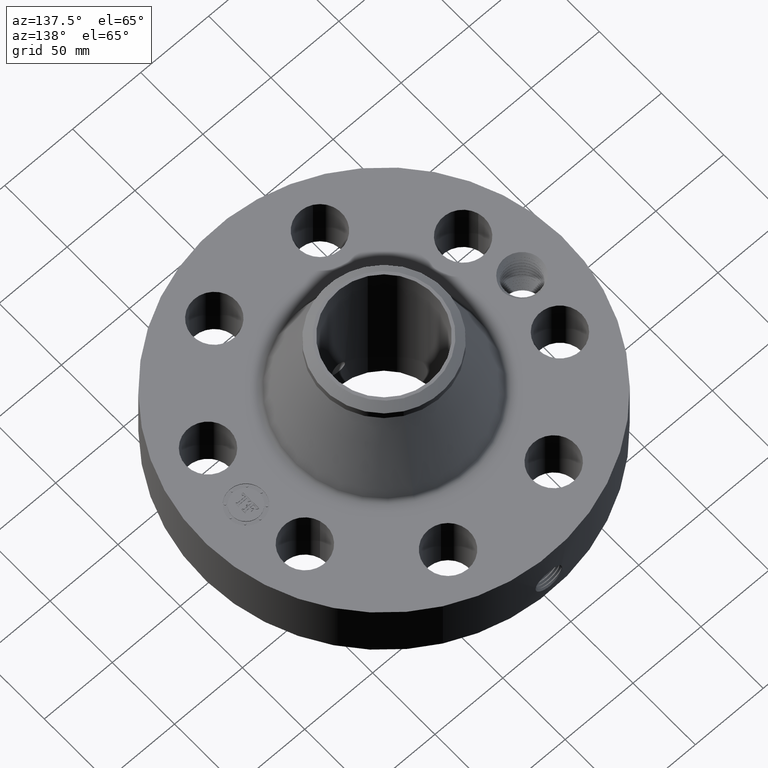
[diagram: clean part render]
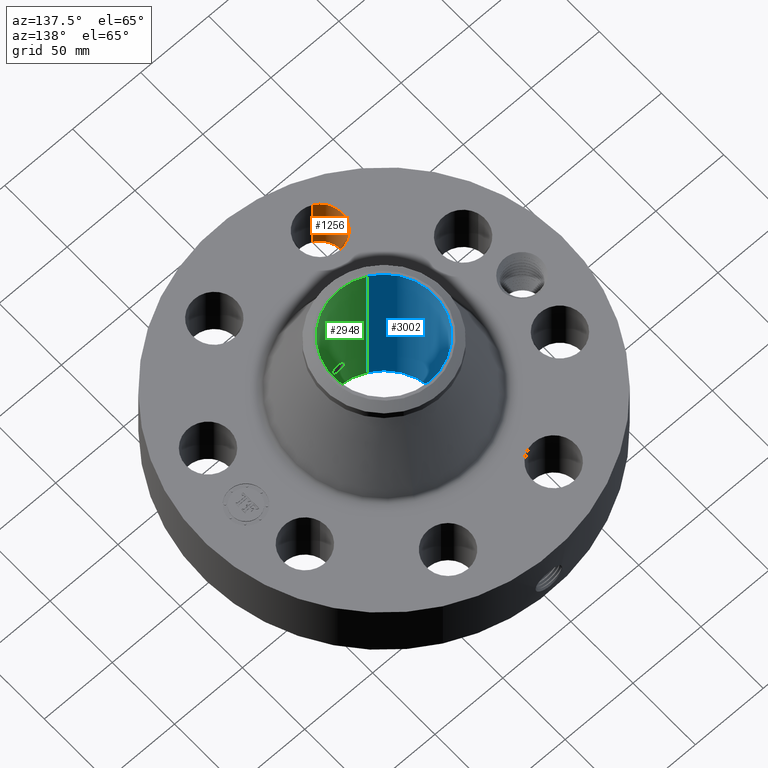
[diagram: same view with three faces highlighted in distinct colors, each labeled with its STEP entity id]
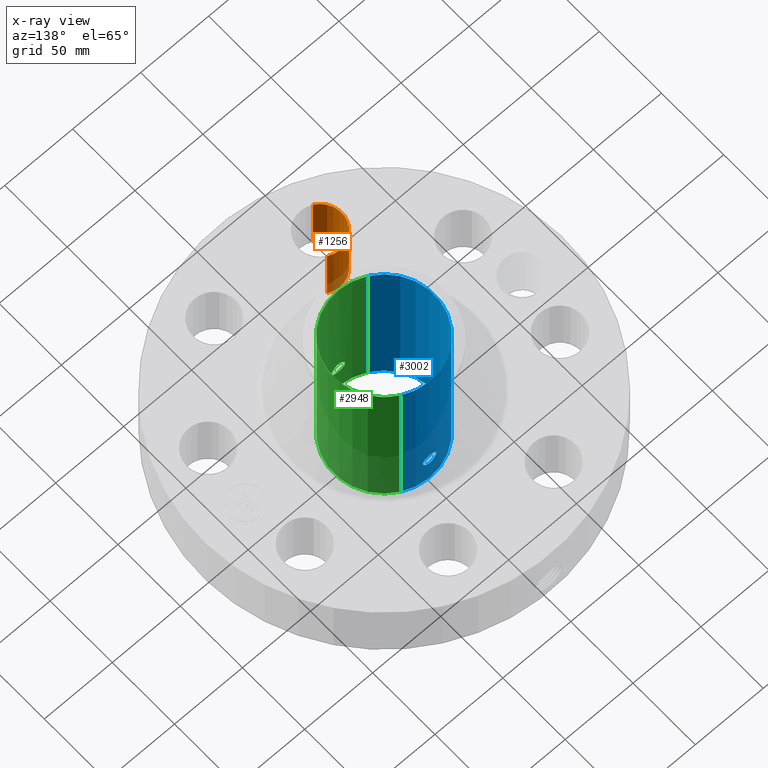
[diagram: x-ray of the same camera — body ghosted, the three highlighted faces saturated]
A machine part, auxiliary view with three faces highlighted in distinct colors.
The next image is the same camera in x-ray (body ghosted, the three faces saturated) — at least one of them is partly hidden behind the body in this view.
Their STEP definitions:

[orange] entity #1256 — the highlighted cylindrical surface (edge-blend (fillet) strip) has radius 15.875 mm, axis along (0, -0, -1).
#294=AXIS2_PLACEMENT_3D('Circle Axis2P3D',#292,#293,$) ;
#609=AXIS2_PLACEMENT_3D('Circle Axis2P3D',#607,#608,$) ;
#1231=AXIS2_PLACEMENT_3D('Cylinder Axis2P3D',#1228,#1229,#1230) ;
#287=CARTESIAN_POINT('Vertex',(-1.23109276784,-3.14702902888,0.250000000001)) ;
#289=CARTESIAN_POINT('Vertex',(-1.8303746911,-4.24400723124,0.250000000001)) ;
#292=CARTESIAN_POINT('Axis2P3D Location',(-1.53073372947,-3.69551813006,0.250000000001)) ;
#607=CARTESIAN_POINT('Axis2P3D Location',(-1.53073372947,-3.69551813006,2.13000000001)) ;
#611=CARTESIAN_POINT('Vertex',(-1.8303746911,-4.24400723124,2.13000000001)) ;
#613=CARTESIAN_POINT('Vertex',(-1.23109276784,-3.14702902888,2.13000000001)) ;
#1228=CARTESIAN_POINT('Axis2P3D Location',(-1.53073372947,-3.69551813006,2.12606299213)) ;
#1233=CARTESIAN_POINT('Line Origine',(-1.23109276784,-3.14702902888,1.19)) ;
#1238=CARTESIAN_POINT('Line Origine',(-1.8303746911,-4.24400723124,1.19)) ;
#293=DIRECTION('Axis2P3D Direction',(0.,0.,-0.0393700787402)) ;
#608=DIRECTION('Axis2P3D Direction',(0.,0.,-0.0393700787402)) ;
#1229=DIRECTION('Axis2P3D Direction',(0.,-0.,-0.0393700787402)) ;
#1230=DIRECTION('Axis2P3D XDirection',(-0.0188750212049,-0.0345504945626,0.)) ;
#1234=DIRECTION('Vector Direction',(0.,0.,-0.0393700787402)) ;
#1239=DIRECTION('Vector Direction',(0.,0.,-0.0393700787402)) ;
#1235=VECTOR('Line Direction',#1234,0.0393700787402) ;
#1240=VECTOR('Line Direction',#1239,0.0393700787402) ;
#1251=ORIENTED_EDGE('',*,*,#1242,.F.) ;
#1252=ORIENTED_EDGE('',*,*,#296,.T.) ;
#1253=ORIENTED_EDGE('',*,*,#1237,.T.) ;
#1254=ORIENTED_EDGE('',*,*,#615,.F.) ;
#1256=ADVANCED_FACE('PartBody',(#1255),#1232,.F.) ;
#295=CIRCLE('generated circle',#294,0.625000000002) ;
#610=CIRCLE('generated circle',#609,0.625000000002) ;
#1232=CYLINDRICAL_SURFACE('generated cylinder',#1231,0.625000000002) ;
#296=EDGE_CURVE('',#290,#288,#295,.T.) ;
#615=EDGE_CURVE('',#612,#614,#610,.T.) ;
#1237=EDGE_CURVE('',#288,#614,#1236,.F.) ;
#1242=EDGE_CURVE('',#290,#612,#1241,.F.) ;
#1250=EDGE_LOOP('',(#1251,#1252,#1253,#1254)) ;
#1255=FACE_OUTER_BOUND('',#1250,.T.) ;
#1236=LINE('Line',#1233,#1235) ;
#1241=LINE('Line',#1238,#1240) ;
#288=VERTEX_POINT('',#287) ;
#290=VERTEX_POINT('',#289) ;
#612=VERTEX_POINT('',#611) ;
#614=VERTEX_POINT('',#613) ;

[blue] entity #3002 — the highlighted cylindrical surface (partial cylindrical patch) has radius 36.83 mm, axis along (0, 0, -1).
#2170=AXIS2_PLACEMENT_3D('Circle Axis2P3D',#2168,#2169,$) ;
#2879=AXIS2_PLACEMENT_3D('Cylinder Axis2P3D',#2876,#2877,#2878) ;
#2951=AXIS2_PLACEMENT_3D('Circle Axis2P3D',#2949,#2950,$) ;
#2163=CARTESIAN_POINT('Vertex',(0.695167030979,1.27249471475,-5.31508345647E-015)) ;
#2165=CARTESIAN_POINT('Vertex',(-0.695167030979,-1.27249471475,-5.31508345647E-015)) ;
#2168=CARTESIAN_POINT('Axis2P3D Location',(0.,0.,0.)) ;
#2876=CARTESIAN_POINT('Axis2P3D Location',(0.,0.,2.43500000001)) ;
#2885=CARTESIAN_POINT('Vertex',(0.695167030979,1.27249471475,4.87000000002)) ;
#2887=CARTESIAN_POINT('Vertex',(-0.695167030979,-1.27249471475,4.87000000002)) ;
#2890=CARTESIAN_POINT('Line Origine',(0.695167030979,1.27249471475,2.43500000001)) ;
#2895=CARTESIAN_POINT('Line Origine',(-0.695167030979,-1.27249471475,2.43500000001)) ;
#2949=CARTESIAN_POINT('Axis2P3D Location',(0.,0.,4.87000000002)) ;
#2961=CARTESIAN_POINT('Control Point',(0.164546730355,1.44063332377,1.02989228849)) ;
#2962=CARTESIAN_POINT('Control Point',(0.153731070916,1.44186867031,1.0496902203)) ;
#2963=CARTESIAN_POINT('Control Point',(0.1399440751,1.4433405746,1.0678501142)) ;
#2964=CARTESIAN_POINT('Control Point',(0.123510243056,1.44489924446,1.08378933192)) ;
#2965=CARTESIAN_POINT('Control Point',(0.0771457667551,1.44849158589,1.11680313088)) ;
#2966=CARTESIAN_POINT('Control Point',(0.0211416426386,1.45046278414,1.13099774423)) ;
#2967=CARTESIAN_POINT('Control Point',(-0.0138877540621,1.45055904578,1.13166367444)) ;
#2968=CARTESIAN_POINT('Control Point',(-0.0704180054505,1.4488559579,1.11959366783)) ;
#2969=CARTESIAN_POINT('Control Point',(-0.118016251878,1.44536877231,1.08833659059)) ;
#2970=CARTESIAN_POINT('Control Point',(-0.135050957048,1.44381724598,1.07301259638)) ;
#2971=CARTESIAN_POINT('Control Point',(-0.174424603892,1.439735322,1.02499594325)) ;
#2972=CARTESIAN_POINT('Control Point',(-0.192227243464,1.43719597583,0.964023576812)) ;
#2973=CARTESIAN_POINT('Control Point',(-0.19299470992,1.43707883877,0.923187725862)) ;
#2974=CARTESIAN_POINT('Control Point',(-0.183180576885,1.43850499696,0.884216738796)) ;
#2975=CARTESIAN_POINT('Control Point',(-0.164546730355,1.44063332377,0.850107711515)) ;
#2976=CARTESIAN_POINT('Vertex',(0.164546730355,1.44063332377,1.02989228849)) ;
#2978=CARTESIAN_POINT('Vertex',(-0.164546730355,1.44063332377,0.850107711515)) ;
#2982=CARTESIAN_POINT('Control Point',(-0.164546730355,1.44063332377,0.850107711515)) ;
#2983=CARTESIAN_POINT('Control Point',(-0.153731070919,1.44186867031,0.830309779714)) ;
#2984=CARTESIAN_POINT('Control Point',(-0.139944075108,1.4433405746,0.812149885818)) ;
#2985=CARTESIAN_POINT('Control Point',(-0.123510243049,1.44489924446,0.796210668087)) ;
#2986=CARTESIAN_POINT('Control Point',(-0.0771457667562,1.44849158589,0.763196869129)) ;
#2987=CARTESIAN_POINT('Control Point',(-0.0211416426513,1.45046278414,0.749002255782)) ;
#2988=CARTESIAN_POINT('Control Point',(0.0138877540657,1.45055904578,0.748336325564)) ;
#2989=CARTESIAN_POINT('Control Point',(0.0704180054557,1.4488559579,0.760406332184)) ;
#2990=CARTESIAN_POINT('Control Point',(0.118016251885,1.44536877231,0.791663409422)) ;
#2991=CARTESIAN_POINT('Control Point',(0.135050957037,1.44381724598,0.806987403618)) ;
#2992=CARTESIAN_POINT('Control Point',(0.174424603894,1.439735322,0.85500405675)) ;
#2993=CARTESIAN_POINT('Control Point',(0.192227243468,1.43719597583,0.915976423206)) ;
#2994=CARTESIAN_POINT('Control Point',(0.192994709924,1.43707883877,0.956812274132)) ;
#2995=CARTESIAN_POINT('Control Point',(0.183180576888,1.43850499696,0.995783261205)) ;
#2996=CARTESIAN_POINT('Control Point',(0.164546730355,1.44063332377,1.02989228849)) ;
#2169=DIRECTION('Axis2P3D Direction',(0.,0.,-0.0393700787402)) ;
#2877=DIRECTION('Axis2P3D Direction',(0.,0.,-0.0393700787402)) ;
#2878=DIRECTION('Axis2P3D XDirection',(-0.0188750212049,-0.0345504945626,0.)) ;
#2891=DIRECTION('Vector Direction',(0.,0.,-0.0393700787402)) ;
#2896=DIRECTION('Vector Direction',(0.,0.,-0.0393700787402)) ;
#2950=DIRECTION('Axis2P3D Direction',(0.,0.,-0.0393700787402)) ;
#2892=VECTOR('Line Direction',#2891,0.0393700787402) ;
#2897=VECTOR('Line Direction',#2896,0.0393700787402) ;
#2955=ORIENTED_EDGE('',*,*,#2953,.F.) ;
#2956=ORIENTED_EDGE('',*,*,#2899,.T.) ;
#2957=ORIENTED_EDGE('',*,*,#2172,.T.) ;
#2958=ORIENTED_EDGE('',*,*,#2894,.F.) ;
#2999=ORIENTED_EDGE('',*,*,#2980,.F.) ;
#3000=ORIENTED_EDGE('',*,*,#2997,.F.) ;
#3001=FACE_BOUND('',#2998,.T.) ;
#3002=ADVANCED_FACE('PartBody',(#2959,#3001),#2880,.F.) ;
#2960=B_SPLINE_CURVE_WITH_KNOTS('',5,(#2961,#2962,#2963,#2964,#2965,#2966,#2967,#2968,#2969,#2970,#2971,#2972,#2973,#2974,#2975),.UNSPECIFIED.,.F.,.U.,(6,3,3,3,6),(0.,4.05789415065,10.1286634862,14.1897420022,21.1809178301),.UNSPECIFIED.) ;
#2981=B_SPLINE_CURVE_WITH_KNOTS('',5,(#2982,#2983,#2984,#2985,#2986,#2987,#2988,#2989,#2990,#2991,#2992,#2993,#2994,#2995,#2996),.UNSPECIFIED.,.F.,.U.,(6,3,3,3,6),(0.,4.05789414951,10.1286634844,14.1897420014,21.1809178306),.UNSPECIFIED.) ;
#2171=CIRCLE('generated circle',#2170,1.45000000001) ;
#2952=CIRCLE('generated circle',#2951,1.45000000001) ;
#2880=CYLINDRICAL_SURFACE('generated cylinder',#2879,1.45000000001) ;
#2172=EDGE_CURVE('',#2166,#2164,#2171,.T.) ;
#2894=EDGE_CURVE('',#2886,#2164,#2893,.T.) ;
#2899=EDGE_CURVE('',#2888,#2166,#2898,.T.) ;
#2953=EDGE_CURVE('',#2888,#2886,#2952,.T.) ;
#2980=EDGE_CURVE('',#2977,#2979,#2960,.T.) ;
#2997=EDGE_CURVE('',#2979,#2977,#2981,.T.) ;
#2954=EDGE_LOOP('',(#2955,#2956,#2957,#2958)) ;
#2998=EDGE_LOOP('',(#2999,#3000)) ;
#2959=FACE_OUTER_BOUND('',#2954,.T.) ;
#2893=LINE('Line',#2890,#2892) ;
#2898=LINE('Line',#2895,#2897) ;
#2164=VERTEX_POINT('',#2163) ;
#2166=VERTEX_POINT('',#2165) ;
#2886=VERTEX_POINT('',#2885) ;
#2888=VERTEX_POINT('',#2887) ;
#2977=VERTEX_POINT('',#2976) ;
#2979=VERTEX_POINT('',#2978) ;

[green] entity #2948 — the highlighted cylindrical surface (partial cylindrical patch) has radius 36.83 mm, axis along (0, 0, -1).
#2161=AXIS2_PLACEMENT_3D('Circle Axis2P3D',#2159,#2160,$) ;
#2879=AXIS2_PLACEMENT_3D('Cylinder Axis2P3D',#2876,#2877,#2878) ;
#2883=AXIS2_PLACEMENT_3D('Circle Axis2P3D',#2881,#2882,$) ;
#2159=CARTESIAN_POINT('Axis2P3D Location',(0.,0.,0.)) ;
#2163=CARTESIAN_POINT('Vertex',(0.695167030979,1.27249471475,-5.31508345647E-015)) ;
#2165=CARTESIAN_POINT('Vertex',(-0.695167030979,-1.27249471475,-5.31508345647E-015)) ;
#2876=CARTESIAN_POINT('Axis2P3D Location',(0.,0.,2.43500000001)) ;
#2881=CARTESIAN_POINT('Axis2P3D Location',(0.,0.,4.87000000002)) ;
#2885=CARTESIAN_POINT('Vertex',(0.695167030979,1.27249471475,4.87000000002)) ;
#2887=CARTESIAN_POINT('Vertex',(-0.695167030979,-1.27249471475,4.87000000002)) ;
#2890=CARTESIAN_POINT('Line Origine',(0.695167030979,1.27249471475,2.43500000001)) ;
#2895=CARTESIAN_POINT('Line Origine',(-0.695167030979,-1.27249471475,2.43500000001)) ;
#2907=CARTESIAN_POINT('Control Point',(0.164546730355,-1.44063332377,0.850107711515)) ;
#2908=CARTESIAN_POINT('Control Point',(0.15373107092,-1.44186867031,0.830309779716)) ;
#2909=CARTESIAN_POINT('Control Point',(0.139944075111,-1.4433405746,0.812149885822)) ;
#2910=CARTESIAN_POINT('Control Point',(0.123510243043,-1.44489924446,0.796210668083)) ;
#2911=CARTESIAN_POINT('Control Point',(0.0771457667498,-1.44849158589,0.763196869126)) ;
#2912=CARTESIAN_POINT('Control Point',(0.0211416426439,-1.45046278414,0.749002255781)) ;
#2913=CARTESIAN_POINT('Control Point',(-0.0138877540633,-1.45055904578,0.748336325563)) ;
#2914=CARTESIAN_POINT('Control Point',(-0.0704180054586,-1.4488559579,0.760406332184)) ;
#2915=CARTESIAN_POINT('Control Point',(-0.118016251891,-1.44536877231,0.791663409426)) ;
#2916=CARTESIAN_POINT('Control Point',(-0.135050957035,-1.44381724598,0.806987403616)) ;
#2917=CARTESIAN_POINT('Control Point',(-0.17442460389,-1.439735322,0.855004056746)) ;
#2918=CARTESIAN_POINT('Control Point',(-0.192227243465,-1.43719597583,0.915976423198)) ;
#2919=CARTESIAN_POINT('Control Point',(-0.192994709921,-1.43707883877,0.956812274141)) ;
#2920=CARTESIAN_POINT('Control Point',(-0.183180576886,-1.43850499696,0.99578326121)) ;
#2921=CARTESIAN_POINT('Control Point',(-0.164546730355,-1.44063332377,1.02989228849)) ;
#2922=CARTESIAN_POINT('Vertex',(0.164546730355,-1.44063332377,0.850107711515)) ;
#2924=CARTESIAN_POINT('Vertex',(-0.164546730355,-1.44063332377,1.02989228849)) ;
#2928=CARTESIAN_POINT('Control Point',(-0.164546730355,-1.44063332377,1.02989228849)) ;
#2929=CARTESIAN_POINT('Control Point',(-0.153731070917,-1.44186867031,1.0496902203)) ;
#2930=CARTESIAN_POINT('Control Point',(-0.139944075105,-1.4433405746,1.06785011419)) ;
#2931=CARTESIAN_POINT('Control Point',(-0.123510243051,-1.44489924446,1.08378933192)) ;
#2932=CARTESIAN_POINT('Control Point',(-0.0771457667554,-1.44849158589,1.11680313088)) ;
#2933=CARTESIAN_POINT('Control Point',(-0.0211416426455,-1.45046278414,1.13099774423)) ;
#2934=CARTESIAN_POINT('Control Point',(0.013887754064,-1.45055904578,1.13166367444)) ;
#2935=CARTESIAN_POINT('Control Point',(0.0704180054582,-1.4488559579,1.11959366782)) ;
#2936=CARTESIAN_POINT('Control Point',(0.11801625189,-1.44536877231,1.08833659058)) ;
#2937=CARTESIAN_POINT('Control Point',(0.135050957035,-1.44381724598,1.07301259639)) ;
#2938=CARTESIAN_POINT('Control Point',(0.174424603891,-1.439735322,1.02499594326)) ;
#2939=CARTESIAN_POINT('Control Point',(0.192227243466,-1.43719597583,0.964023576808)) ;
#2940=CARTESIAN_POINT('Control Point',(0.192994709922,-1.43707883877,0.923187725868)) ;
#2941=CARTESIAN_POINT('Control Point',(0.183180576886,-1.43850499696,0.884216738799)) ;
#2942=CARTESIAN_POINT('Control Point',(0.164546730355,-1.44063332377,0.850107711515)) ;
#2160=DIRECTION('Axis2P3D Direction',(0.,0.,-0.0393700787402)) ;
#2877=DIRECTION('Axis2P3D Direction',(0.,0.,-0.0393700787402)) ;
#2878=DIRECTION('Axis2P3D XDirection',(-0.0188750212049,-0.0345504945626,0.)) ;
#2882=DIRECTION('Axis2P3D Direction',(0.,0.,-0.0393700787402)) ;
#2891=DIRECTION('Vector Direction',(0.,0.,-0.0393700787402)) ;
#2896=DIRECTION('Vector Direction',(0.,0.,-0.0393700787402)) ;
#2892=VECTOR('Line Direction',#2891,0.0393700787402) ;
#2897=VECTOR('Line Direction',#2896,0.0393700787402) ;
#2901=ORIENTED_EDGE('',*,*,#2889,.F.) ;
#2902=ORIENTED_EDGE('',*,*,#2894,.T.) ;
#2903=ORIENTED_EDGE('',*,*,#2167,.T.) ;
#2904=ORIENTED_EDGE('',*,*,#2899,.F.) ;
#2945=ORIENTED_EDGE('',*,*,#2926,.F.) ;
#2946=ORIENTED_EDGE('',*,*,#2943,.F.) ;
#2947=FACE_BOUND('',#2944,.T.) ;
#2948=ADVANCED_FACE('PartBody',(#2905,#2947),#2880,.F.) ;
#2906=B_SPLINE_CURVE_WITH_KNOTS('',5,(#2907,#2908,#2909,#2910,#2911,#2912,#2913,#2914,#2915,#2916,#2917,#2918,#2919,#2920,#2921),.UNSPECIFIED.,.F.,.U.,(6,3,3,3,6),(0.,4.0578941491,10.1286634844,14.1897420019,21.1809178302),.UNSPECIFIED.) ;
#2927=B_SPLINE_CURVE_WITH_KNOTS('',5,(#2928,#2929,#2930,#2931,#2932,#2933,#2934,#2935,#2936,#2937,#2938,#2939,#2940,#2941,#2942),.UNSPECIFIED.,.F.,.U.,(6,3,3,3,6),(0.,4.05789414999,10.1286634852,14.1897420026,21.1809178311),.UNSPECIFIED.) ;
#2162=CIRCLE('generated circle',#2161,1.45000000001) ;
#2884=CIRCLE('generated circle',#2883,1.45000000001) ;
#2880=CYLINDRICAL_SURFACE('generated cylinder',#2879,1.45000000001) ;
#2167=EDGE_CURVE('',#2164,#2166,#2162,.T.) ;
#2889=EDGE_CURVE('',#2886,#2888,#2884,.T.) ;
#2894=EDGE_CURVE('',#2886,#2164,#2893,.T.) ;
#2899=EDGE_CURVE('',#2888,#2166,#2898,.T.) ;
#2926=EDGE_CURVE('',#2923,#2925,#2906,.T.) ;
#2943=EDGE_CURVE('',#2925,#2923,#2927,.T.) ;
#2900=EDGE_LOOP('',(#2901,#2902,#2903,#2904)) ;
#2944=EDGE_LOOP('',(#2945,#2946)) ;
#2905=FACE_OUTER_BOUND('',#2900,.T.) ;
#2893=LINE('Line',#2890,#2892) ;
#2898=LINE('Line',#2895,#2897) ;
#2164=VERTEX_POINT('',#2163) ;
#2166=VERTEX_POINT('',#2165) ;
#2886=VERTEX_POINT('',#2885) ;
#2888=VERTEX_POINT('',#2887) ;
#2923=VERTEX_POINT('',#2922) ;
#2925=VERTEX_POINT('',#2924) ;